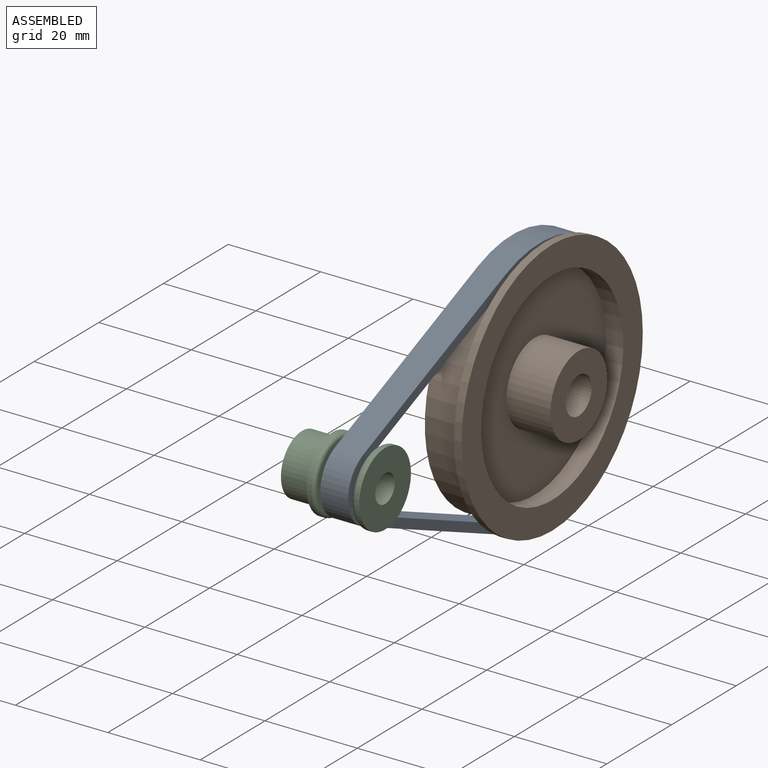
[diagram: assembled view]
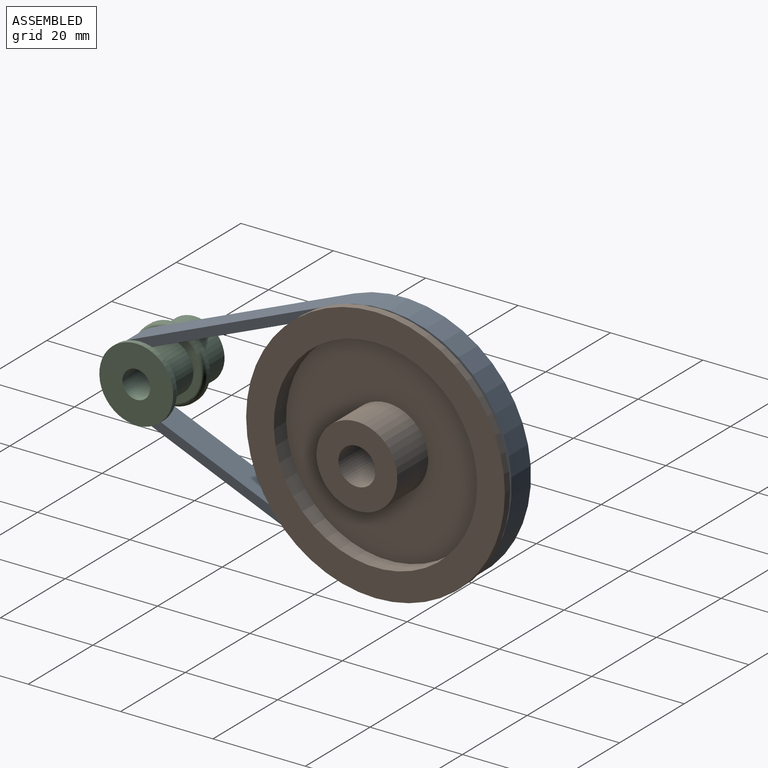
[diagram: assembled view, second angle]
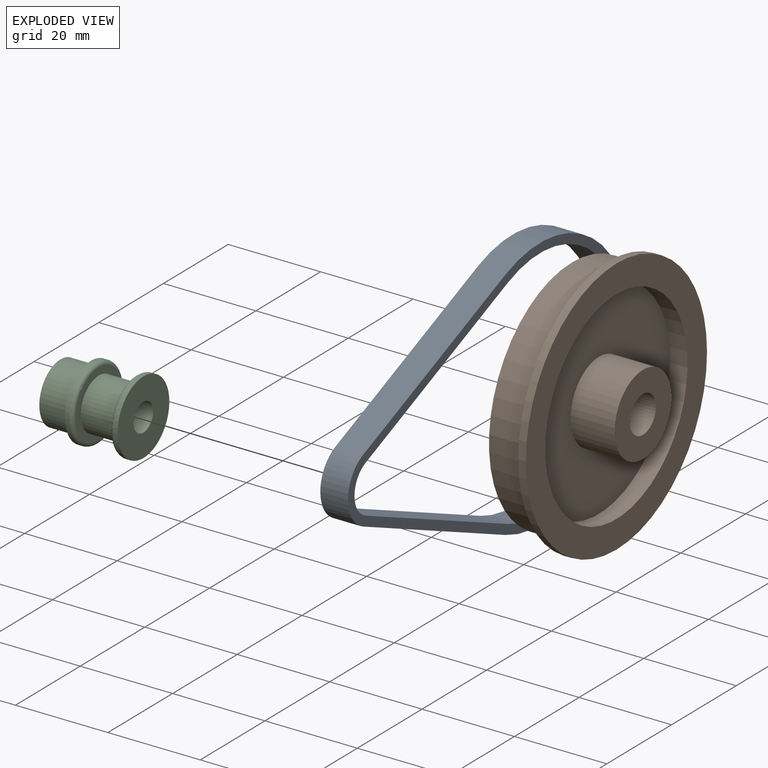
[diagram: exploded view]
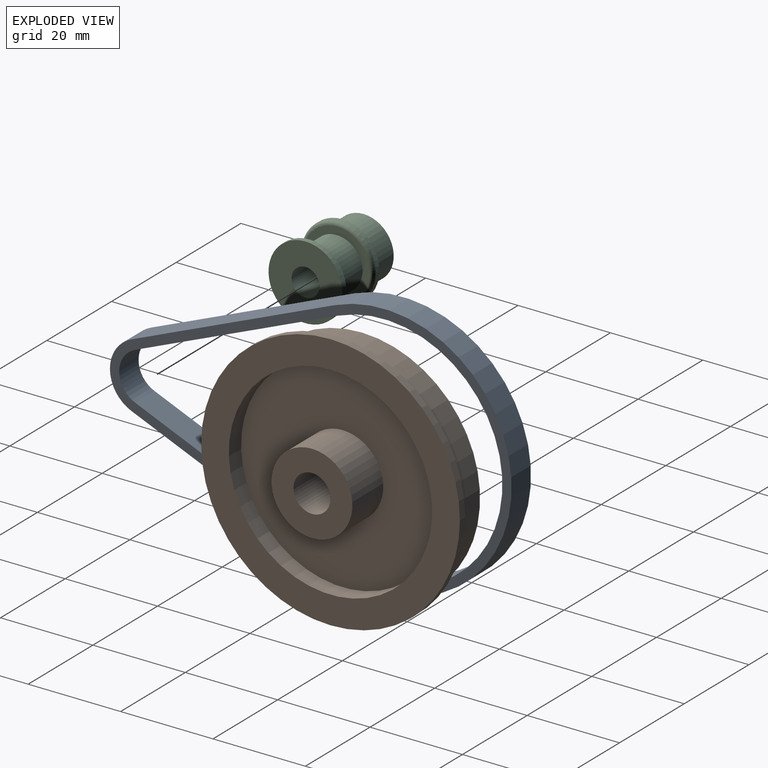
[diagram: exploded view, second angle]
ASSEMBLY  parts=3 mates=2
PART A: 10 faces, bbox 87x6x55.2 mm
  f0: cylinder r=27.62mm len=55.23mm, axis (0,1,0), area 652.2mm2, adj f1,f7,f8,f9
  f1: plane 44x18.46mm, normal (0.39,0,-0.92), area 286.3mm2, adj f0,f2,f8,f9
  f2: cylinder r=7.6mm len=14.02mm, axis (0,1,0), area 107mm2, adj f1,f7,f8,f9
  f3: plane 44x18.46mm, normal (-0.39,0,0.92), area 286.3mm2, adj f4,f6,f8,f9
  f4: cylinder r=25.61mm len=51.23mm, axis (0,1,0), area 604.9mm2, adj f3,f5,f8,f9
  f5: plane 44x18.46mm, normal (-0.39,0,-0.92), area 286.3mm2, adj f4,f6,f8,f9
  f6: cylinder r=5.6mm len=10.33mm, axis (0,1,0), area 78.9mm2, adj f3,f5,f8,f9
  f7: plane 44x18.46mm, normal (0.39,0,0.92), area 286.3mm2, adj f0,f2,f8,f9
  f8: plane 86.96x55.23mm, normal (0,-1,0), area 431.3mm2, adj f0,f1,f2,f3,f4,f5,f6,f7
  f9: plane 86.96x55.23mm, normal (0,1,0), area 431.3mm2, adj f0,f1,f2,f3,f4,f5,f6,f7
PART B: 14 faces, bbox 18.2x56x56 mm
  f0: cylinder r=22.02mm len=44.03mm, axis (-1,0,0), area 359.6mm2, adj f1,f13
  f1: plane 44.03x44.03mm, normal (-1,0,0), area 1397.9mm2, adj f0,f2
  f2: cylinder r=6.3mm len=12.6mm, axis (-1,0,0), area 213.8mm2, adj f1,f3
  f3: plane 12.6x12.6mm, normal (-1,0,0), area 74.4mm2, adj f2,f4
  f4: cylinder r=4mm len=18.2mm, axis (-1,0,0), area 457.4mm2, adj f3,f5
  f5: plane 17.5x17.5mm, normal (1,0,0), area 190.3mm2, adj f4,f6
  f6: cylinder r=8.75mm len=17.5mm, axis (-1,0,0), area 525mm2, adj f5,f7
  f7: plane 44.03x44.03mm, normal (1,0,0), area 1282.1mm2, adj f6,f8
  f8: cylinder r=22.02mm len=44.03mm, axis (-1,0,0), area 525.6mm2, adj f7,f9
  f9: plane 56x56mm, normal (1,0,0), area 940.4mm2, adj f8,f10
  f10: cylinder r=28mm len=56mm, axis (-1,0,0), area 290.3mm2, adj f9,f11
  f11: plane 56x56mm, normal (-1,0,0), area 401.7mm2, adj f10,f12
  f12: cylinder r=25.61mm len=51.23mm, axis (-1,0,0), area 1287.6mm2, adj f11,f13
  f13: plane 51.23x51.23mm, normal (-1,0,0), area 538.7mm2, adj f0,f12
PART C: 12 faces, bbox 18x17.3x17.3 mm
  f0: plane 16x16mm, normal (1,0,0), area 172.8mm2, adj f1,f9
  f1: cylinder r=8mm len=16mm, axis (-1,0,0), area 45.2mm2, adj f0,f10
  f2: plane 14.4x14.4mm, normal (-1,0,0), area 65.7mm2, adj f3,f10
  f3: cylinder r=5.56mm len=11.12mm, axis (-1,0,0), area 279.5mm2, adj f2,f4
  f4: plane 14.4x14.4mm, normal (1,0,0), area 65.7mm2, adj f3,f11
  f5: cylinder r=8mm len=16mm, axis (-1,0,0), area 45.2mm2, adj f6,f11
  f6: plane 16x16mm, normal (-1,0,0), area 68.3mm2, adj f5,f7
  f7: cylinder r=6.5mm len=13mm, axis (-1,0,0), area 269.5mm2, adj f6,f8
  f8: plane 13x13mm, normal (-1,0,0), area 104.5mm2, adj f7,f9
  f9: cylinder r=3mm len=18mm, axis (-1,0,0), area 339.3mm2, adj f0,f8
  f10: torus R=7.2mm, axis (-1,0,0), area 60.9mm2, adj f1,f2
  f11: torus R=7.2mm, axis (1,0,0), area 60.9mm2, adj f4,f5
PLACE A rot(axis=(0,0,-1),90deg) t=(15.3,0,0)mm
PLACE B t=(5.5,51.74,0)mm
PLACE C at identity fixed
MATE fastened A.f0 <-> B.f0  axis (1,0,0) through (12.3,51.74,0)mm
MATE fastened A.f2 <-> C.f1  axis (1,0,0) through (12.3,0,0)mm
